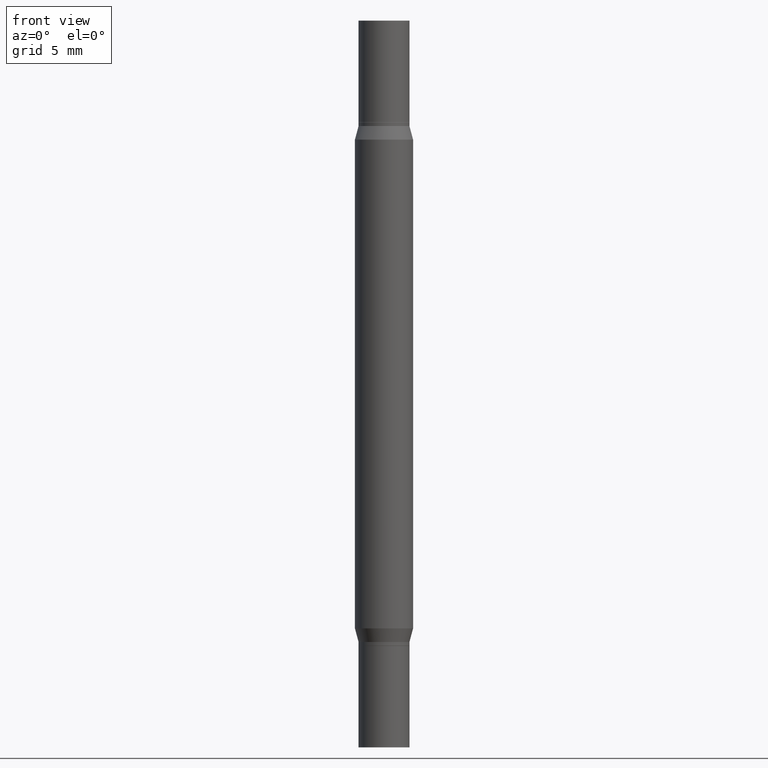
[diagram: clean part render]
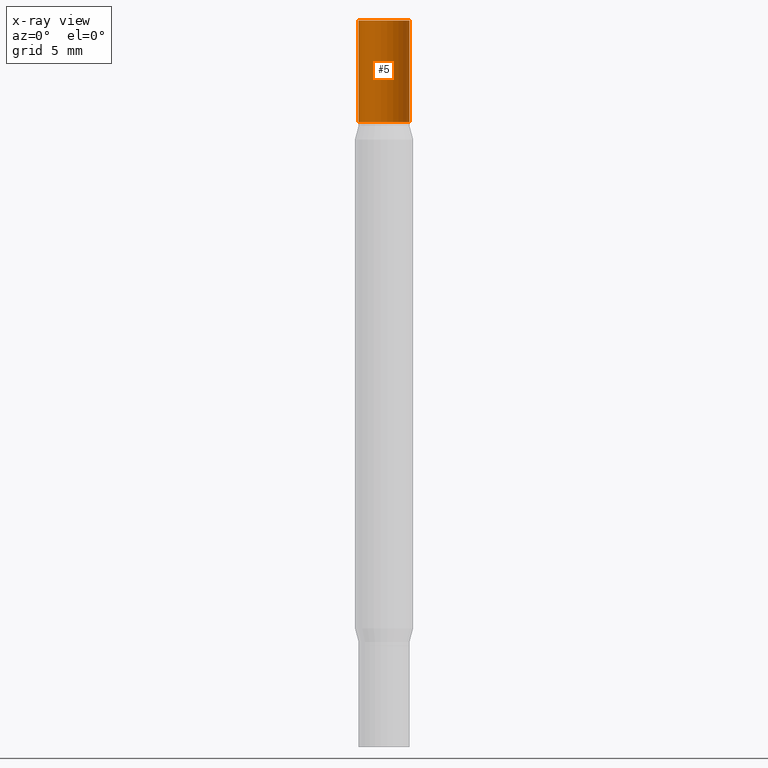
[diagram: x-ray — body ghosted, one internal face saturated and labeled with its STEP entity id]
A machine part, front view, then the same camera in x-ray: the body is ghosted and one INTERNAL B-rep face — a face not visible from any outside direction — is saturated and labeled: STEP entity #5.
In plain terms, the highlighted cylindrical surface (edge-blend (fillet) strip) has radius 1.7501 mm, axis along (-0, -0, -1).
Its self-contained STEP definition (entity closure, byte-faithful):
#3 = CARTESIAN_POINT ( 'NONE',  ( -0.06890000000000007230, -8.163773080062677072E-18, 2.731847993664279982E-16 ) ) ;
#5 = ADVANCED_FACE ( 'NONE', ( #418 ), #39, .T. ) ;
#11 = CIRCLE ( 'NONE', #621, 0.06890000000000007230 ) ;
#39 = CYLINDRICAL_SURFACE ( 'NONE', #684, 0.06890000000000007230 ) ;
#94 = CARTESIAN_POINT ( 'NONE',  ( -0.06890000000000007230, -8.163773080062737161E-18, -0.2755999999999999006 ) ) ;
#100 = DIRECTION ( 'NONE',  ( -2.445468806185136877E-29, -3.491805094961123683E-15, -1.000000000000000000 ) ) ;
#149 = ORIENTED_EDGE ( 'NONE', *, *, #664, .F. ) ;
#159 = CARTESIAN_POINT ( 'NONE',  ( 0.06890000000000007230, -4.808074715334629460E-16, 2.731847993664263218E-16 ) ) ;
#175 = AXIS2_PLACEMENT_3D ( 'NONE', #581, #439, #823 ) ;
#182 = DIRECTION ( 'NONE',  ( 1.000000000000000000, -6.982962677686258822E-15, 0.000000000000000000 ) ) ;
#215 = CARTESIAN_POINT ( 'NONE',  ( 4.813905344975441835E-29, 3.186569591213228268E-19, 2.731847993664263218E-16 ) ) ;
#239 = EDGE_CURVE ( 'NONE', #412, #978, #367, .T. ) ;
#277 = EDGE_CURVE ( 'NONE', #800, #978, #559, .T. ) ;
#331 = CARTESIAN_POINT ( 'NONE',  ( 0.000000000000000000, -6.873299672471851415E-15, -1.968499999999999694 ) ) ;
#367 = LINE ( 'NONE', #447, #855 ) ;
#371 = DIRECTION ( 'NONE',  ( -2.445468806185136877E-29, -3.491805094961123683E-15, -1.000000000000000000 ) ) ;
#412 = VERTEX_POINT ( 'NONE', #3 ) ;
#418 = FACE_OUTER_BOUND ( 'NONE', #849, .T. ) ;
#439 = DIRECTION ( 'NONE',  ( 2.445468806185136597E-29, 3.491805094961124077E-15, 1.000000000000000000 ) ) ;
#447 = CARTESIAN_POINT ( 'NONE',  ( -0.06890000000000007230, -6.400611360425392691E-15, -1.968499999999999694 ) ) ;
#481 = EDGE_CURVE ( 'NONE', #862, #800, #483, .T. ) ;
#483 = LINE ( 'NONE', #782, #536 ) ;
#536 = VECTOR ( 'NONE', #100, 39.37007874015748143 ) ;
#559 = CIRCLE ( 'NONE', #175, 0.06890000000000007230 ) ;
#581 = CARTESIAN_POINT ( 'NONE',  ( 4.139934141990817236E-29, -9.620228272121656440E-16, -0.2755999999999999006 ) ) ;
#611 = CARTESIAN_POINT ( 'NONE',  ( 0.06890000000000007230, -1.443148955704749777E-15, -0.2755999999999999006 ) ) ;
#621 = AXIS2_PLACEMENT_3D ( 'NONE', #215, #659, #951 ) ;
#659 = DIRECTION ( 'NONE',  ( 2.445468806185136597E-29, 3.491805094961124077E-15, 1.000000000000000000 ) ) ;
#664 = EDGE_CURVE ( 'NONE', #862, #412, #11, .T. ) ;
#671 = ORIENTED_EDGE ( 'NONE', *, *, #239, .F. ) ;
#684 = AXIS2_PLACEMENT_3D ( 'NONE', #331, #844, #182 ) ;
#710 = ORIENTED_EDGE ( 'NONE', *, *, #277, .T. ) ;
#782 = CARTESIAN_POINT ( 'NONE',  ( 0.06890000000000007230, -7.354425800964435942E-15, -1.968499999999999694 ) ) ;
#800 = VERTEX_POINT ( 'NONE', #611 ) ;
#823 = DIRECTION ( 'NONE',  ( 1.000000000000000000, -6.982962677686265922E-15, 0.000000000000000000 ) ) ;
#844 = DIRECTION ( 'NONE',  ( -2.445468806185136597E-29, -3.491805094961124077E-15, -1.000000000000000000 ) ) ;
#849 = EDGE_LOOP ( 'NONE', ( #671, #149, #933, #710 ) ) ;
#855 = VECTOR ( 'NONE', #371, 39.37007874015748143 ) ;
#862 = VERTEX_POINT ( 'NONE', #159 ) ;
#933 = ORIENTED_EDGE ( 'NONE', *, *, #481, .T. ) ;
#951 = DIRECTION ( 'NONE',  ( 1.000000000000000000, -6.982962677686265922E-15, 0.000000000000000000 ) ) ;
#978 = VERTEX_POINT ( 'NONE', #94 ) ;